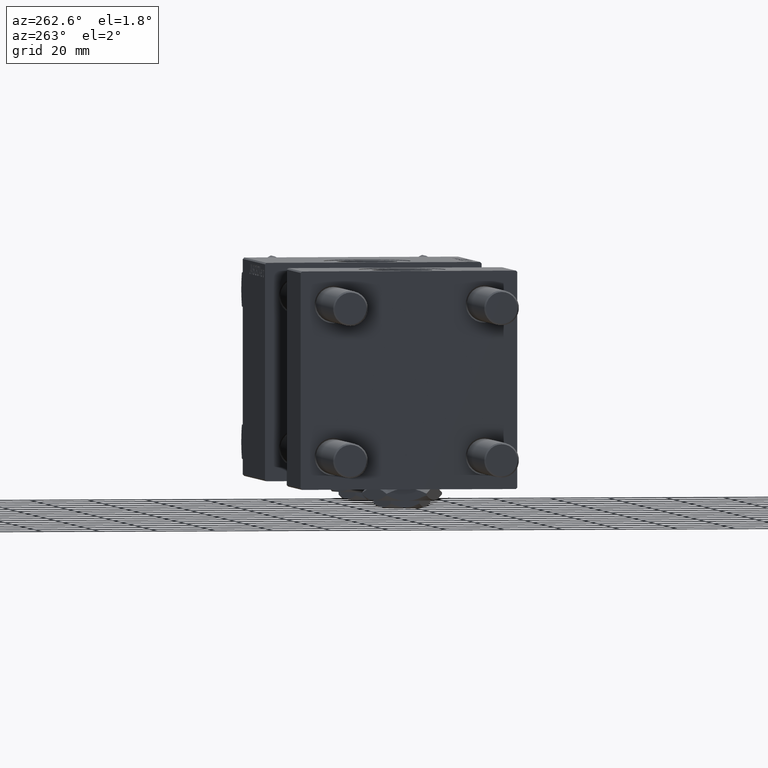
[diagram: clean part render]
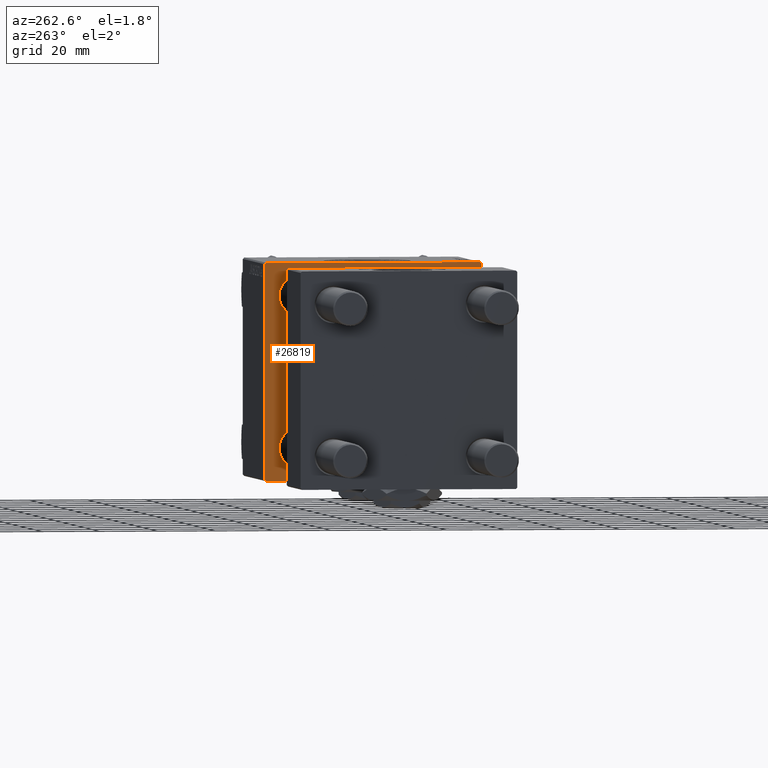
[diagram: same view with one face highlighted and labeled with its STEP entity id]
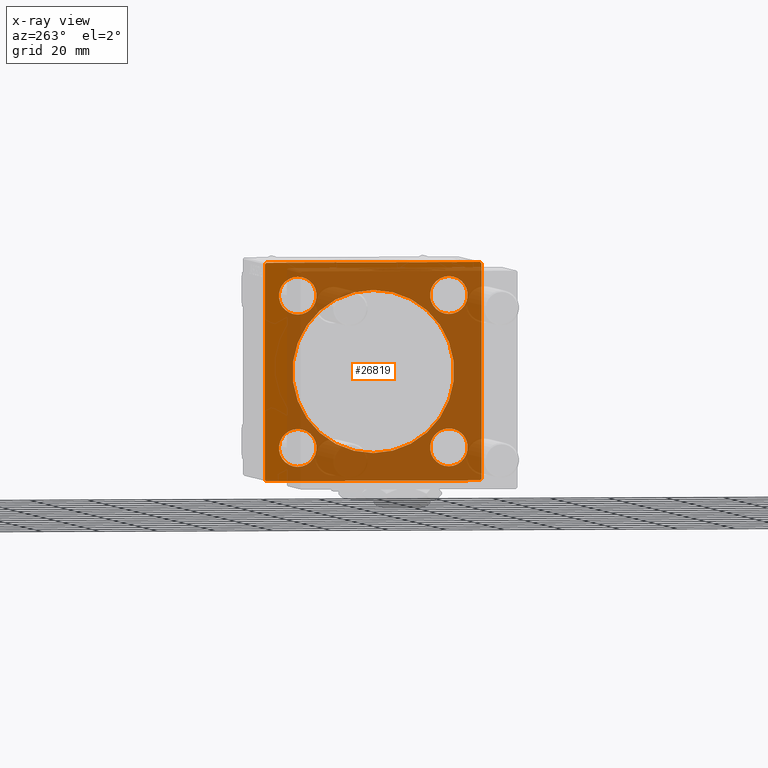
[diagram: x-ray of the same camera — body ghosted, the highlighted face saturated]
A machine part, auxiliary view. The second image highlights one B-rep face of the part: STEP entity #26819.
The next image is the same camera in x-ray: the body ghosted, the highlighted face saturated — about 75% of this face is hidden behind the body in this view.
In plain terms, the highlighted planar face has unit normal (-1, 0, 0).
Its self-contained STEP definition (entity closure, byte-faithful):
#252 = VECTOR ( 'NONE', #10426, 999.9999999999998863 ) ;
#415 = CARTESIAN_POINT ( 'NONE',  ( 95.00000000000000000, 26.14999999999999858, 19.64999999999999858 ) ) ;
#488 = CARTESIAN_POINT ( 'NONE',  ( 95.00000000000000000, -36.99999999999998579, -37.50000000000000000 ) ) ;
#759 = DIRECTION ( 'NONE',  ( 0.000000000000000000, 0.000000000000000000, 1.000000000000000000 ) ) ;
#1021 = FACE_BOUND ( 'NONE', #44958, .T. ) ;
#1325 = AXIS2_PLACEMENT_3D ( 'NONE', #46857, #10488, #30115 ) ;
#2018 = CARTESIAN_POINT ( 'NONE',  ( 95.00000000000000000, -37.50000000000000711, -37.00000000000000711 ) ) ;
#2799 = EDGE_CURVE ( 'NONE', #23877, #47571, #43040, .T. ) ;
#3002 = CIRCLE ( 'NONE', #1325, 6.500000000000008882 ) ;
#3027 = ORIENTED_EDGE ( 'NONE', *, *, #2799, .T. ) ;
#3127 = LINE ( 'NONE', #51031, #50698 ) ;
#3268 = AXIS2_PLACEMENT_3D ( 'NONE', #27021, #10288, #6857 ) ;
#4165 = CARTESIAN_POINT ( 'NONE',  ( 95.00000000000000000, 37.00000000000000000, -37.50000000000000000 ) ) ;
#4188 = ORIENTED_EDGE ( 'NONE', *, *, #22411, .F. ) ;
#4442 = VERTEX_POINT ( 'NONE', #35946 ) ;
#4489 = ORIENTED_EDGE ( 'NONE', *, *, #10894, .T. ) ;
#4684 = FACE_OUTER_BOUND ( 'NONE', #22740, .T. ) ;
#4688 = ORIENTED_EDGE ( 'NONE', *, *, #28403, .T. ) ;
#4960 = CARTESIAN_POINT ( 'NONE',  ( 95.00000000000000000, 37.00000000000000000, 37.49999999999999289 ) ) ;
#5012 = DIRECTION ( 'NONE',  ( 0.000000000000000000, 0.7071067811865474617, -0.7071067811865474617 ) ) ;
#5403 = EDGE_CURVE ( 'NONE', #25891, #50177, #48790, .T. ) ;
#6857 = DIRECTION ( 'NONE',  ( 0.000000000000000000, 0.000000000000000000, 1.000000000000000000 ) ) ;
#7569 = VERTEX_POINT ( 'NONE', #8970 ) ;
#7894 = CARTESIAN_POINT ( 'NONE',  ( 95.00000000000000000, -26.14999999999999147, -32.65000000000001990 ) ) ;
#8130 = VERTEX_POINT ( 'NONE', #415 ) ;
#8285 = CIRCLE ( 'NONE', #40904, 28.00000000000000000 ) ;
#8640 = CIRCLE ( 'NONE', #15352, 6.500000000000002665 ) ;
#8868 = DIRECTION ( 'NONE',  ( 0.000000000000000000, 0.000000000000000000, -1.000000000000000000 ) ) ;
#8970 = CARTESIAN_POINT ( 'NONE',  ( 95.00000000000000000, 37.50000000000000000, -36.99999999999999289 ) ) ;
#9589 = EDGE_CURVE ( 'NONE', #34076, #36934, #3002, .T. ) ;
#9824 = CIRCLE ( 'NONE', #44121, 6.500000000000008882 ) ;
#10288 = DIRECTION ( 'NONE',  ( 1.000000000000000000, 0.000000000000000000, -0.000000000000000000 ) ) ;
#10426 = DIRECTION ( 'NONE',  ( -0.000000000000000000, -0.7071067811865425767, -0.7071067811865525687 ) ) ;
#10488 = DIRECTION ( 'NONE',  ( 1.000000000000000000, 0.000000000000000000, -0.000000000000000000 ) ) ;
#10894 = EDGE_CURVE ( 'NONE', #46690, #43394, #40892, .T. ) ;
#11910 = ORIENTED_EDGE ( 'NONE', *, *, #49348, .T. ) ;
#12545 = FACE_BOUND ( 'NONE', #20096, .T. ) ;
#13271 = DIRECTION ( 'NONE',  ( 1.000000000000000000, 0.000000000000000000, 0.000000000000000000 ) ) ;
#13446 = EDGE_CURVE ( 'NONE', #25901, #4442, #31554, .T. ) ;
#14394 = DIRECTION ( 'NONE',  ( 0.000000000000000000, 0.000000000000000000, 1.000000000000000000 ) ) ;
#14470 = DIRECTION ( 'NONE',  ( 1.000000000000000000, 0.000000000000000000, -0.000000000000000000 ) ) ;
#14747 = VERTEX_POINT ( 'NONE', #29644 ) ;
#14792 = VERTEX_POINT ( 'NONE', #32786 ) ;
#15352 = AXIS2_PLACEMENT_3D ( 'NONE', #38219, #30617, #14394 ) ;
#16678 = DIRECTION ( 'NONE',  ( 0.000000000000000000, 0.000000000000000000, 1.000000000000000000 ) ) ;
#17253 = LINE ( 'NONE', #44744, #17980 ) ;
#17298 = CARTESIAN_POINT ( 'NONE',  ( 95.00000000000000000, -26.14999999999999147, 19.65000000000000568 ) ) ;
#17504 = ORIENTED_EDGE ( 'NONE', *, *, #22328, .T. ) ;
#17760 = CARTESIAN_POINT ( 'NONE',  ( 95.00000000000000000, -37.50000000000000000, 36.99999999999995026 ) ) ;
#17980 = VECTOR ( 'NONE', #8868, 1000.000000000000000 ) ;
#18173 = DIRECTION ( 'NONE',  ( 1.000000000000000000, 0.000000000000000000, -0.000000000000000000 ) ) ;
#18375 = ORIENTED_EDGE ( 'NONE', *, *, #41246, .T. ) ;
#18690 = ORIENTED_EDGE ( 'NONE', *, *, #25929, .T. ) ;
#19104 = DIRECTION ( 'NONE',  ( 0.000000000000000000, -1.000000000000000000, 0.000000000000000000 ) ) ;
#19307 = EDGE_CURVE ( 'NONE', #25901, #50177, #31802, .T. ) ;
#19635 = AXIS2_PLACEMENT_3D ( 'NONE', #29507, #41026, #16678 ) ;
#20021 = DIRECTION ( 'NONE',  ( 0.000000000000000000, -9.251858538542972814E-17, -1.000000000000000000 ) ) ;
#20096 = EDGE_LOOP ( 'NONE', ( #48680, #3027 ) ) ;
#20171 = AXIS2_PLACEMENT_3D ( 'NONE', #38586, #18173, #50635 ) ;
#20564 = EDGE_CURVE ( 'NONE', #14747, #24078, #29377, .T. ) ;
#20988 = EDGE_LOOP ( 'NONE', ( #32115, #25962 ) ) ;
#21475 = CARTESIAN_POINT ( 'NONE',  ( 95.00000000000000000, 0.000000000000000000, 0.000000000000000000 ) ) ;
#21699 = CIRCLE ( 'NONE', #31709, 6.500000000000008882 ) ;
#22074 = DIRECTION ( 'NONE',  ( 0.000000000000000000, 0.000000000000000000, 1.000000000000000000 ) ) ;
#22077 = EDGE_LOOP ( 'NONE', ( #24939, #44765 ) ) ;
#22208 = CARTESIAN_POINT ( 'NONE',  ( 95.00000000000000000, 37.25000000000026290, -37.24999999999974420 ) ) ;
#22253 = DIRECTION ( 'NONE',  ( 1.000000000000000000, 0.000000000000000000, -0.000000000000000000 ) ) ;
#22328 = EDGE_CURVE ( 'NONE', #23180, #25891, #3127, .T. ) ;
#22411 = EDGE_CURVE ( 'NONE', #46690, #4442, #29219, .T. ) ;
#22740 = EDGE_LOOP ( 'NONE', ( #17504, #47253, #43146, #34832, #4188, #4489, #42180, #18690 ) ) ;
#22891 = CARTESIAN_POINT ( 'NONE',  ( 95.00000000000000000, 26.14999999999999858, 26.15000000000000213 ) ) ;
#23042 = VECTOR ( 'NONE', #20021, 1000.000000000000000 ) ;
#23180 = VERTEX_POINT ( 'NONE', #4165 ) ;
#23284 = EDGE_CURVE ( 'NONE', #43394, #7569, #17253, .T. ) ;
#23877 = VERTEX_POINT ( 'NONE', #7894 ) ;
#24078 = VERTEX_POINT ( 'NONE', #31924 ) ;
#24553 = AXIS2_PLACEMENT_3D ( 'NONE', #24852, #45003, #759 ) ;
#24852 = CARTESIAN_POINT ( 'NONE',  ( 95.00000000000000000, 0.000000000000000000, 0.000000000000000000 ) ) ;
#24888 = EDGE_CURVE ( 'NONE', #44291, #8130, #8640, .T. ) ;
#24939 = ORIENTED_EDGE ( 'NONE', *, *, #24888, .T. ) ;
#25325 = DIRECTION ( 'NONE',  ( 0.000000000000000000, 0.000000000000000000, -1.000000000000000000 ) ) ;
#25376 = FACE_BOUND ( 'NONE', #22077, .T. ) ;
#25746 = CARTESIAN_POINT ( 'NONE',  ( 95.00000000000000000, -26.14999999999999147, 26.15000000000000924 ) ) ;
#25891 = VERTEX_POINT ( 'NONE', #488 ) ;
#25901 = VERTEX_POINT ( 'NONE', #17760 ) ;
#25929 = EDGE_CURVE ( 'NONE', #7569, #23180, #50475, .T. ) ;
#25962 = ORIENTED_EDGE ( 'NONE', *, *, #9589, .T. ) ;
#26044 = DIRECTION ( 'NONE',  ( 1.000000000000000000, 0.000000000000000000, -0.000000000000000000 ) ) ;
#26819 = ADVANCED_FACE ( 'NONE', ( #29037, #25376, #41342, #12545, #1021, #4684 ), #48674, .T. ) ;
#27021 = CARTESIAN_POINT ( 'NONE',  ( 95.00000000000000000, -26.14999999999999147, -26.15000000000000924 ) ) ;
#28107 = DIRECTION ( 'NONE',  ( 0.000000000000000000, -0.7071067811865671127, 0.7071067811865279218 ) ) ;
#28403 = EDGE_CURVE ( 'NONE', #47198, #14792, #8285, .T. ) ;
#28852 = CARTESIAN_POINT ( 'NONE',  ( 95.00000000000000000, 37.25000000000000000, 37.25000000000000000 ) ) ;
#29037 = FACE_BOUND ( 'NONE', #20988, .T. ) ;
#29112 = EDGE_CURVE ( 'NONE', #47571, #23877, #48411, .T. ) ;
#29219 = LINE ( 'NONE', #36287, #32297 ) ;
#29329 = DIRECTION ( 'NONE',  ( 0.000000000000000000, 0.000000000000000000, -1.000000000000000000 ) ) ;
#29377 = CIRCLE ( 'NONE', #20171, 6.500000000000008882 ) ;
#29507 = CARTESIAN_POINT ( 'NONE',  ( 95.00000000000000000, -26.14999999999999147, -26.15000000000000924 ) ) ;
#29644 = CARTESIAN_POINT ( 'NONE',  ( 95.00000000000000000, 26.14999999999999858, -19.64999999999999503 ) ) ;
#29988 = AXIS2_PLACEMENT_3D ( 'NONE', #22891, #26044, #49874 ) ;
#30115 = DIRECTION ( 'NONE',  ( 0.000000000000000000, 0.000000000000000000, 1.000000000000000000 ) ) ;
#30617 = DIRECTION ( 'NONE',  ( 1.000000000000000000, 0.000000000000000000, -0.000000000000000000 ) ) ;
#31549 = VECTOR ( 'NONE', #5012, 1000.000000000000114 ) ;
#31554 = LINE ( 'NONE', #43859, #36912 ) ;
#31709 = AXIS2_PLACEMENT_3D ( 'NONE', #49759, #22253, #34037 ) ;
#31802 = LINE ( 'NONE', #43594, #23042 ) ;
#31924 = CARTESIAN_POINT ( 'NONE',  ( 95.00000000000000000, 26.14999999999999858, -32.65000000000001279 ) ) ;
#32115 = ORIENTED_EDGE ( 'NONE', *, *, #36497, .T. ) ;
#32297 = VECTOR ( 'NONE', #44671, 1000.000000000000000 ) ;
#32320 = DIRECTION ( 'NONE',  ( -0.000000000000000000, 0.7071067811865474617, 0.7071067811865474617 ) ) ;
#32485 = CIRCLE ( 'NONE', #29988, 6.500000000000002665 ) ;
#32786 = CARTESIAN_POINT ( 'NONE',  ( 95.00000000000000000, 3.429011037612588487E-15, -28.00000000000000000 ) ) ;
#33535 = CARTESIAN_POINT ( 'NONE',  ( 95.00000000000000000, -26.14999999999999147, 32.65000000000001279 ) ) ;
#34037 = DIRECTION ( 'NONE',  ( 0.000000000000000000, 0.000000000000000000, 1.000000000000000000 ) ) ;
#34076 = VERTEX_POINT ( 'NONE', #17298 ) ;
#34832 = ORIENTED_EDGE ( 'NONE', *, *, #13446, .T. ) ;
#35730 = EDGE_LOOP ( 'NONE', ( #45191, #18375 ) ) ;
#35946 = CARTESIAN_POINT ( 'NONE',  ( 95.00000000000000000, -36.99999999999997158, 37.49999999999997868 ) ) ;
#36287 = CARTESIAN_POINT ( 'NONE',  ( 95.00000000000000000, 37.50000000000000000, 37.49999999999999289 ) ) ;
#36497 = EDGE_CURVE ( 'NONE', #36934, #34076, #9824, .T. ) ;
#36912 = VECTOR ( 'NONE', #32320, 1000.000000000000114 ) ;
#36934 = VERTEX_POINT ( 'NONE', #33535 ) ;
#38219 = CARTESIAN_POINT ( 'NONE',  ( 95.00000000000000000, 26.14999999999999858, 26.15000000000000213 ) ) ;
#38586 = CARTESIAN_POINT ( 'NONE',  ( 95.00000000000000000, 26.14999999999999858, -26.15000000000000213 ) ) ;
#40162 = EDGE_CURVE ( 'NONE', #8130, #44291, #32485, .T. ) ;
#40477 = CARTESIAN_POINT ( 'NONE',  ( 95.00000000000000000, 37.50000000000000000, 36.99999999999999289 ) ) ;
#40892 = LINE ( 'NONE', #28852, #31549 ) ;
#40904 = AXIS2_PLACEMENT_3D ( 'NONE', #21475, #45302, #29329 ) ;
#41026 = DIRECTION ( 'NONE',  ( 1.000000000000000000, 0.000000000000000000, -0.000000000000000000 ) ) ;
#41246 = EDGE_CURVE ( 'NONE', #24078, #14747, #21699, .T. ) ;
#41342 = FACE_BOUND ( 'NONE', #35730, .T. ) ;
#41804 = CARTESIAN_POINT ( 'NONE',  ( 95.00000000000000000, 0.000000000000000000, 0.000000000000000000 ) ) ;
#42146 = VECTOR ( 'NONE', #28107, 1000.000000000000000 ) ;
#42180 = ORIENTED_EDGE ( 'NONE', *, *, #23284, .T. ) ;
#42844 = AXIS2_PLACEMENT_3D ( 'NONE', #41804, #13271, #25325 ) ;
#43040 = CIRCLE ( 'NONE', #19635, 6.500000000000008882 ) ;
#43146 = ORIENTED_EDGE ( 'NONE', *, *, #19307, .F. ) ;
#43394 = VERTEX_POINT ( 'NONE', #40477 ) ;
#43594 = CARTESIAN_POINT ( 'NONE',  ( 95.00000000000000000, -37.50000000000000000, 37.49999999999997868 ) ) ;
#43859 = CARTESIAN_POINT ( 'NONE',  ( 95.00000000000000000, -37.24999999999997158, 37.24999999999997158 ) ) ;
#44121 = AXIS2_PLACEMENT_3D ( 'NONE', #25746, #14470, #22074 ) ;
#44291 = VERTEX_POINT ( 'NONE', #44989 ) ;
#44597 = CARTESIAN_POINT ( 'NONE',  ( 95.00000000000000000, -37.24999999999896261, -37.25000000000103029 ) ) ;
#44671 = DIRECTION ( 'NONE',  ( 0.000000000000000000, -1.000000000000000000, -1.850371707708594316E-16 ) ) ;
#44744 = CARTESIAN_POINT ( 'NONE',  ( 95.00000000000000000, 37.50000000000000000, 37.49999999999999289 ) ) ;
#44765 = ORIENTED_EDGE ( 'NONE', *, *, #40162, .T. ) ;
#44958 = EDGE_LOOP ( 'NONE', ( #4688, #11910 ) ) ;
#44989 = CARTESIAN_POINT ( 'NONE',  ( 95.00000000000000000, 26.14999999999999858, 32.65000000000001279 ) ) ;
#45003 = DIRECTION ( 'NONE',  ( -1.000000000000000000, -0.000000000000000000, 0.000000000000000000 ) ) ;
#45191 = ORIENTED_EDGE ( 'NONE', *, *, #20564, .T. ) ;
#45302 = DIRECTION ( 'NONE',  ( 1.000000000000000000, 0.000000000000000000, 0.000000000000000000 ) ) ;
#46690 = VERTEX_POINT ( 'NONE', #4960 ) ;
#46857 = CARTESIAN_POINT ( 'NONE',  ( 95.00000000000000000, -26.14999999999999147, 26.15000000000000924 ) ) ;
#47198 = VERTEX_POINT ( 'NONE', #48833 ) ;
#47253 = ORIENTED_EDGE ( 'NONE', *, *, #5403, .T. ) ;
#47571 = VERTEX_POINT ( 'NONE', #50758 ) ;
#48411 = CIRCLE ( 'NONE', #3268, 6.500000000000008882 ) ;
#48674 = PLANE ( 'NONE',  #24553 ) ;
#48680 = ORIENTED_EDGE ( 'NONE', *, *, #29112, .T. ) ;
#48790 = LINE ( 'NONE', #44597, #42146 ) ;
#48833 = CARTESIAN_POINT ( 'NONE',  ( 95.00000000000000000, 0.000000000000000000, 28.00000000000000000 ) ) ;
#49348 = EDGE_CURVE ( 'NONE', #14792, #47198, #50407, .T. ) ;
#49759 = CARTESIAN_POINT ( 'NONE',  ( 95.00000000000000000, 26.14999999999999858, -26.15000000000000213 ) ) ;
#49874 = DIRECTION ( 'NONE',  ( 0.000000000000000000, 0.000000000000000000, 1.000000000000000000 ) ) ;
#50177 = VERTEX_POINT ( 'NONE', #2018 ) ;
#50407 = CIRCLE ( 'NONE', #42844, 28.00000000000000000 ) ;
#50475 = LINE ( 'NONE', #22208, #252 ) ;
#50635 = DIRECTION ( 'NONE',  ( 0.000000000000000000, 0.000000000000000000, 1.000000000000000000 ) ) ;
#50698 = VECTOR ( 'NONE', #19104, 1000.000000000000000 ) ;
#50758 = CARTESIAN_POINT ( 'NONE',  ( 95.00000000000000000, -26.14999999999999147, -19.65000000000000213 ) ) ;
#51031 = CARTESIAN_POINT ( 'NONE',  ( 95.00000000000000000, 37.50000000000000000, -37.50000000000000000 ) ) ;